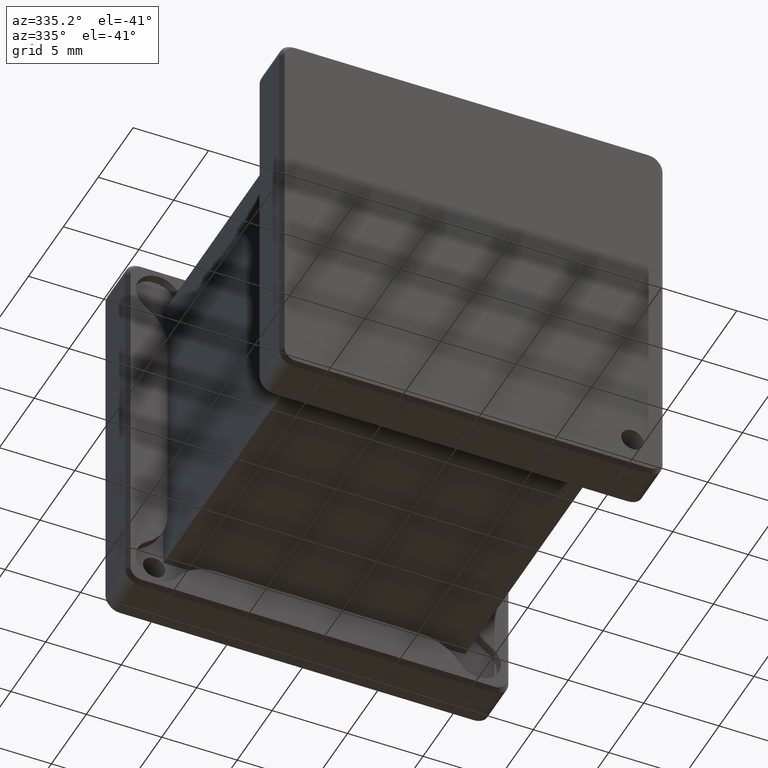
[diagram: clean part render]
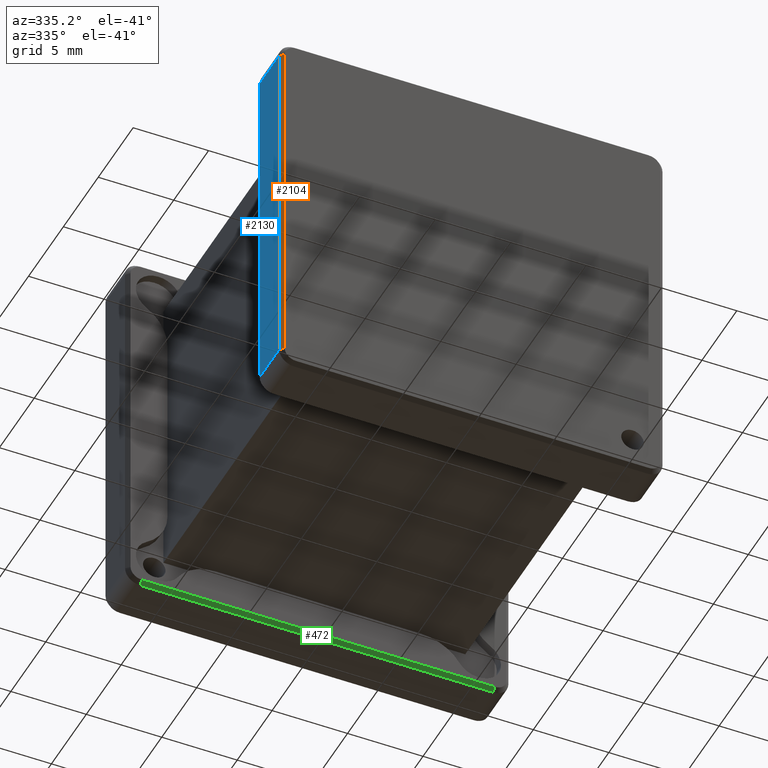
[diagram: same view with three faces highlighted in distinct colors, each labeled with its STEP entity id]
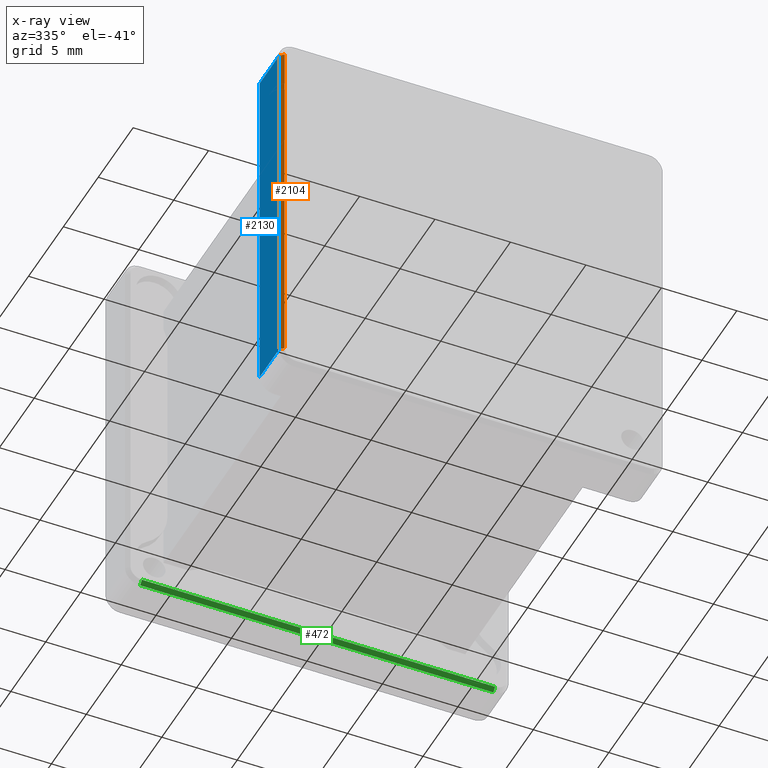
[diagram: x-ray of the same camera — body ghosted, the three highlighted faces saturated]
A machine part, auxiliary view with three faces highlighted in distinct colors.
The next image is the same camera in x-ray (body ghosted, the three faces saturated) — at least one of them is partly hidden behind the body in this view.
Their STEP definitions:

[orange] entity #2104 — the highlighted planar face has unit normal (-0.7071, -0.7071, 0).
#75 = EDGE_CURVE ( 'NONE', #521, #1652, #3167, .T. ) ;
#209 = DIRECTION ( 'NONE',  ( -0.7071067811865557884, -0.7071067811865393571, 0.000000000000000000 ) ) ;
#389 = DIRECTION ( 'NONE',  ( 0.7071067811865459074, -0.7071067811865491270, 0.000000000000000000 ) ) ;
#521 = VERTEX_POINT ( 'NONE', #2399 ) ;
#912 = EDGE_CURVE ( 'NONE', #1652, #1744, #2265, .T. ) ;
#1006 = FACE_OUTER_BOUND ( 'NONE', #2167, .T. ) ;
#1015 = VECTOR ( 'NONE', #1130, 1000.000000000000227 ) ;
#1018 = CARTESIAN_POINT ( 'NONE',  ( -12.70000000000021245, -23.49999999999999645, 11.70000000000009521 ) ) ;
#1130 = DIRECTION ( 'NONE',  ( -0.7071067811865459074, 0.7071067811865491270, 0.000000000000000000 ) ) ;
#1391 = PLANE ( 'NONE',  #3975 ) ;
#1476 = CARTESIAN_POINT ( 'NONE',  ( -12.45000000000021600, -23.74999999999999645, -4.336808689942017736E-15 ) ) ;
#1490 = EDGE_CURVE ( 'NONE', #1744, #2076, #1596, .T. ) ;
#1521 = CARTESIAN_POINT ( 'NONE',  ( -12.70000000000021245, -23.49999999999999645, 11.70000000000009521 ) ) ;
#1596 = LINE ( 'NONE', #3285, #2414 ) ;
#1652 = VERTEX_POINT ( 'NONE', #3428 ) ;
#1717 = CARTESIAN_POINT ( 'NONE',  ( -12.45000000000021600, -23.74999999999999645, 11.70000000000009521 ) ) ;
#1744 = VERTEX_POINT ( 'NONE', #1521 ) ;
#1860 = ORIENTED_EDGE ( 'NONE', *, *, #1490, .F. ) ;
#2076 = VERTEX_POINT ( 'NONE', #1717 ) ;
#2104 = ADVANCED_FACE ( 'NONE', ( #1006 ), #1391, .T. ) ;
#2147 = CARTESIAN_POINT ( 'NONE',  ( -12.45000000000021600, -23.74999999999999645, -11.70000000000010942 ) ) ;
#2156 = ORIENTED_EDGE ( 'NONE', *, *, #75, .F. ) ;
#2167 = EDGE_LOOP ( 'NONE', ( #1860, #2897, #2156, #3243 ) ) ;
#2265 = LINE ( 'NONE', #1018, #2371 ) ;
#2371 = VECTOR ( 'NONE', #3330, 1000.000000000000000 ) ;
#2399 = CARTESIAN_POINT ( 'NONE',  ( -12.45000000000021600, -23.74999999999999645, -11.70000000000010942 ) ) ;
#2414 = VECTOR ( 'NONE', #389, 1000.000000000000227 ) ;
#2716 = CARTESIAN_POINT ( 'NONE',  ( -12.45000000000021600, -23.74999999999999645, -11.70000000000010942 ) ) ;
#2897 = ORIENTED_EDGE ( 'NONE', *, *, #912, .F. ) ;
#3029 = LINE ( 'NONE', #2716, #3124 ) ;
#3124 = VECTOR ( 'NONE', #3496, 1000.000000000000000 ) ;
#3167 = LINE ( 'NONE', #2147, #1015 ) ;
#3243 = ORIENTED_EDGE ( 'NONE', *, *, #3409, .F. ) ;
#3285 = CARTESIAN_POINT ( 'NONE',  ( -12.70000000000021245, -23.49999999999999645, 11.70000000000009521 ) ) ;
#3330 = DIRECTION ( 'NONE',  ( 0.000000000000000000, 0.000000000000000000, 1.000000000000000000 ) ) ;
#3398 = DIRECTION ( 'NONE',  ( 0.000000000000000000, 0.000000000000000000, 1.000000000000000000 ) ) ;
#3409 = EDGE_CURVE ( 'NONE', #2076, #521, #3029, .T. ) ;
#3428 = CARTESIAN_POINT ( 'NONE',  ( -12.70000000000021245, -23.49999999999999645, -11.70000000000010942 ) ) ;
#3496 = DIRECTION ( 'NONE',  ( 0.000000000000000000, 0.000000000000000000, -1.000000000000000000 ) ) ;
#3975 = AXIS2_PLACEMENT_3D ( 'NONE', #1476, #209, #3398 ) ;

[blue] entity #2130 — the highlighted planar face has unit normal (1, 0, -0).
#29 = LINE ( 'NONE', #424, #2165 ) ;
#256 = DIRECTION ( 'NONE',  ( -0.000000000000000000, -1.000000000000000000, -0.000000000000000000 ) ) ;
#401 = DIRECTION ( 'NONE',  ( 0.000000000000000000, 0.000000000000000000, -1.000000000000000000 ) ) ;
#424 = CARTESIAN_POINT ( 'NONE',  ( -12.70000000000021245, -20.69999999999999929, -12.70000000000021068 ) ) ;
#912 = EDGE_CURVE ( 'NONE', #1652, #1744, #2265, .T. ) ;
#1018 = CARTESIAN_POINT ( 'NONE',  ( -12.70000000000021245, -23.49999999999999645, 11.70000000000009521 ) ) ;
#1126 = DIRECTION ( 'NONE',  ( 0.000000000000000000, 0.000000000000000000, 1.000000000000000000 ) ) ;
#1175 = VECTOR ( 'NONE', #1686, 1000.000000000000000 ) ;
#1224 = CARTESIAN_POINT ( 'NONE',  ( -12.70000000000021245, -23.74999999999999645, -11.70000000000010942 ) ) ;
#1243 = ORIENTED_EDGE ( 'NONE', *, *, #1737, .T. ) ;
#1355 = VERTEX_POINT ( 'NONE', #2862 ) ;
#1521 = CARTESIAN_POINT ( 'NONE',  ( -12.70000000000021245, -23.49999999999999645, 11.70000000000009521 ) ) ;
#1590 = VECTOR ( 'NONE', #256, 1000.000000000000000 ) ;
#1652 = VERTEX_POINT ( 'NONE', #3428 ) ;
#1686 = DIRECTION ( 'NONE',  ( 0.000000000000000000, 1.000000000000000000, 0.000000000000000000 ) ) ;
#1689 = LINE ( 'NONE', #1224, #1590 ) ;
#1737 = EDGE_CURVE ( 'NONE', #3690, #1652, #1689, .T. ) ;
#1744 = VERTEX_POINT ( 'NONE', #1521 ) ;
#1769 = CARTESIAN_POINT ( 'NONE',  ( -12.70000000000021245, -23.74999999999999645, -12.70000000000021068 ) ) ;
#1878 = EDGE_CURVE ( 'NONE', #1744, #1355, #2562, .T. ) ;
#1963 = CARTESIAN_POINT ( 'NONE',  ( -12.70000000000021245, -23.74999999999999645, 11.70000000000009521 ) ) ;
#2101 = DIRECTION ( 'NONE',  ( 1.000000000000000000, 0.000000000000000000, -0.000000000000000000 ) ) ;
#2130 = ADVANCED_FACE ( 'NONE', ( #2351 ), #3082, .F. ) ;
#2165 = VECTOR ( 'NONE', #401, 1000.000000000000000 ) ;
#2265 = LINE ( 'NONE', #1018, #2371 ) ;
#2334 = CARTESIAN_POINT ( 'NONE',  ( -12.70000000000021245, -20.69999999999999929, -11.70000000000010942 ) ) ;
#2351 = FACE_OUTER_BOUND ( 'NONE', #3069, .T. ) ;
#2371 = VECTOR ( 'NONE', #3330, 1000.000000000000000 ) ;
#2562 = LINE ( 'NONE', #1963, #1175 ) ;
#2613 = AXIS2_PLACEMENT_3D ( 'NONE', #1769, #2101, #1126 ) ;
#2862 = CARTESIAN_POINT ( 'NONE',  ( -12.70000000000021245, -20.69999999999999929, 11.70000000000009521 ) ) ;
#3069 = EDGE_LOOP ( 'NONE', ( #3680, #3764, #1243, #3977 ) ) ;
#3082 = PLANE ( 'NONE',  #2613 ) ;
#3260 = EDGE_CURVE ( 'NONE', #1355, #3690, #29, .T. ) ;
#3330 = DIRECTION ( 'NONE',  ( 0.000000000000000000, 0.000000000000000000, 1.000000000000000000 ) ) ;
#3428 = CARTESIAN_POINT ( 'NONE',  ( -12.70000000000021245, -23.49999999999999645, -11.70000000000010942 ) ) ;
#3680 = ORIENTED_EDGE ( 'NONE', *, *, #1878, .T. ) ;
#3690 = VERTEX_POINT ( 'NONE', #2334 ) ;
#3764 = ORIENTED_EDGE ( 'NONE', *, *, #3260, .T. ) ;
#3977 = ORIENTED_EDGE ( 'NONE', *, *, #912, .T. ) ;

[green] entity #472 — the highlighted planar face has unit normal (0, 0.7071, 0.7071).
#35 = CARTESIAN_POINT ( 'NONE',  ( -11.70000000000010587, -1.399999999999998579, -12.70000000000020179 ) ) ;
#167 = CARTESIAN_POINT ( 'NONE',  ( 11.70000000000009344, -1.399999999999998579, -12.70000000000020179 ) ) ;
#192 = EDGE_LOOP ( 'NONE', ( #373, #615, #3886, #922 ) ) ;
#198 = DIRECTION ( 'NONE',  ( 1.000000000000000000, 0.000000000000000000, 0.000000000000000000 ) ) ;
#351 = EDGE_CURVE ( 'NONE', #2175, #3079, #2354, .T. ) ;
#373 = ORIENTED_EDGE ( 'NONE', *, *, #778, .T. ) ;
#472 = ADVANCED_FACE ( 'NONE', ( #2090 ), #2759, .F. ) ;
#615 = ORIENTED_EDGE ( 'NONE', *, *, #3479, .F. ) ;
#710 = CARTESIAN_POINT ( 'NONE',  ( -12.70000000000020535, -1.399999999999998579, -12.70000000000020179 ) ) ;
#778 = EDGE_CURVE ( 'NONE', #2175, #2585, #1701, .T. ) ;
#877 = LINE ( 'NONE', #4062, #2109 ) ;
#922 = ORIENTED_EDGE ( 'NONE', *, *, #351, .F. ) ;
#1170 = CARTESIAN_POINT ( 'NONE',  ( 11.70000000000009344, -1.649999999999998579, -12.45000000000019824 ) ) ;
#1225 = VECTOR ( 'NONE', #3017, 1000.000000000000000 ) ;
#1605 = VECTOR ( 'NONE', #3482, 1000.000000000000114 ) ;
#1701 = LINE ( 'NONE', #4169, #1605 ) ;
#1903 = EDGE_CURVE ( 'NONE', #3079, #2943, #2047, .T. ) ;
#2047 = LINE ( 'NONE', #35, #3016 ) ;
#2090 = FACE_OUTER_BOUND ( 'NONE', #192, .T. ) ;
#2109 = VECTOR ( 'NONE', #198, 1000.000000000000000 ) ;
#2175 = VERTEX_POINT ( 'NONE', #167 ) ;
#2304 = CARTESIAN_POINT ( 'NONE',  ( -11.70000000000010587, -1.399999999999998579, -12.70000000000020179 ) ) ;
#2333 = AXIS2_PLACEMENT_3D ( 'NONE', #3701, #3056, #3081 ) ;
#2354 = LINE ( 'NONE', #710, #1225 ) ;
#2585 = VERTEX_POINT ( 'NONE', #1170 ) ;
#2759 = PLANE ( 'NONE',  #2333 ) ;
#2943 = VERTEX_POINT ( 'NONE', #4095 ) ;
#3016 = VECTOR ( 'NONE', #3643, 1000.000000000000114 ) ;
#3017 = DIRECTION ( 'NONE',  ( -1.000000000000000000, 0.000000000000000000, 0.000000000000000000 ) ) ;
#3056 = DIRECTION ( 'NONE',  ( 0.000000000000000000, 0.7071067811865431318, 0.7071067811865520136 ) ) ;
#3079 = VERTEX_POINT ( 'NONE', #2304 ) ;
#3081 = DIRECTION ( 'NONE',  ( -1.000000000000000000, 0.000000000000000000, 0.000000000000000000 ) ) ;
#3479 = EDGE_CURVE ( 'NONE', #2943, #2585, #877, .T. ) ;
#3482 = DIRECTION ( 'NONE',  ( 0.000000000000000000, -0.7071067811865455743, 0.7071067811865495711 ) ) ;
#3643 = DIRECTION ( 'NONE',  ( 0.000000000000000000, -0.7071067811865455743, 0.7071067811865495711 ) ) ;
#3701 = CARTESIAN_POINT ( 'NONE',  ( -12.70000000000020535, -1.399999999999998579, -12.70000000000020179 ) ) ;
#3886 = ORIENTED_EDGE ( 'NONE', *, *, #1903, .F. ) ;
#4062 = CARTESIAN_POINT ( 'NONE',  ( 0.000000000000000000, -1.649999999999998579, -12.45000000000019824 ) ) ;
#4095 = CARTESIAN_POINT ( 'NONE',  ( -11.70000000000010587, -1.649999999999998579, -12.45000000000019824 ) ) ;
#4169 = CARTESIAN_POINT ( 'NONE',  ( 11.70000000000009344, -1.399999999999998579, -12.70000000000020179 ) ) ;